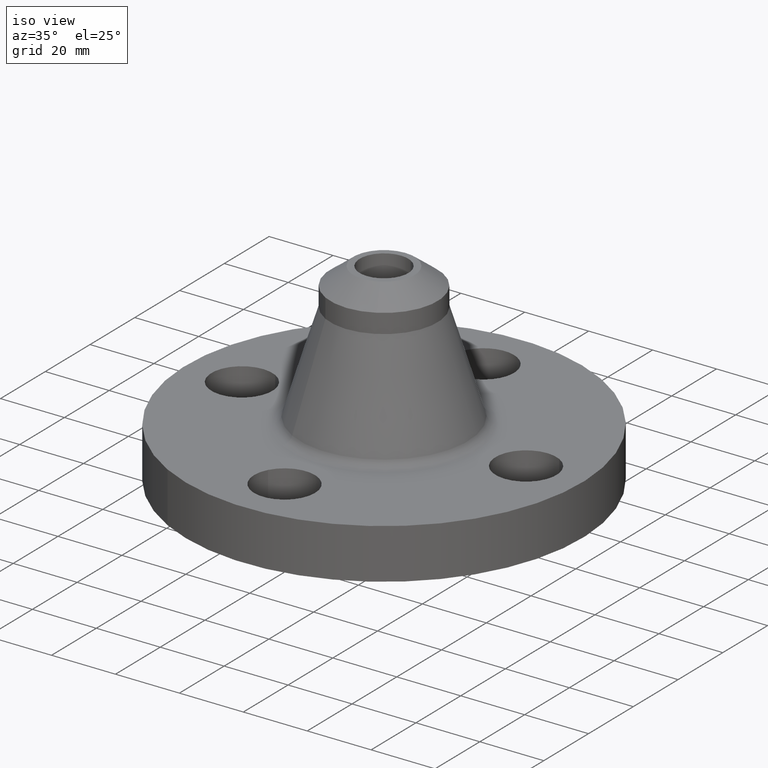
[diagram: clean part render]
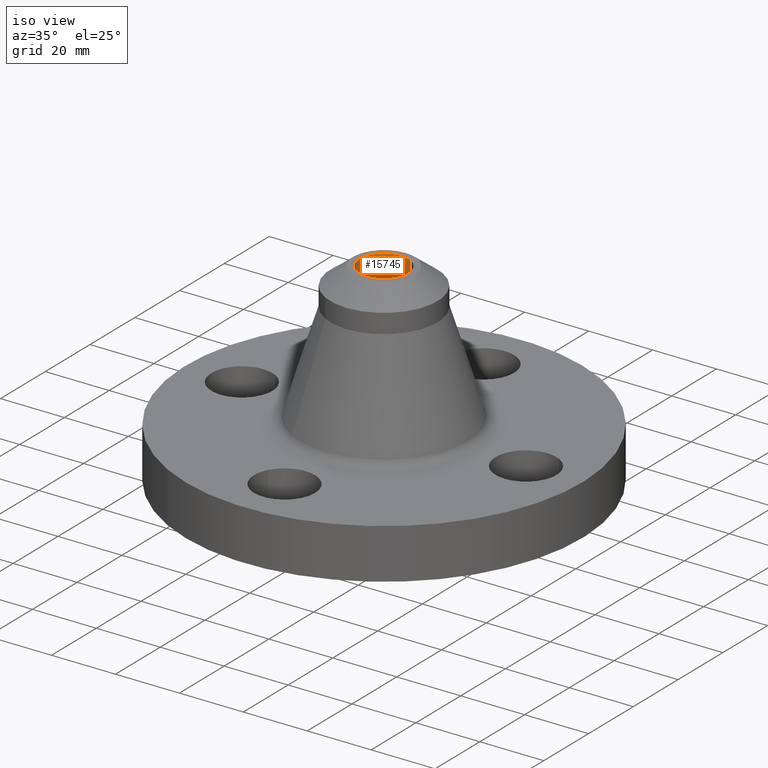
[diagram: same view with one face highlighted and labeled with its STEP entity id]
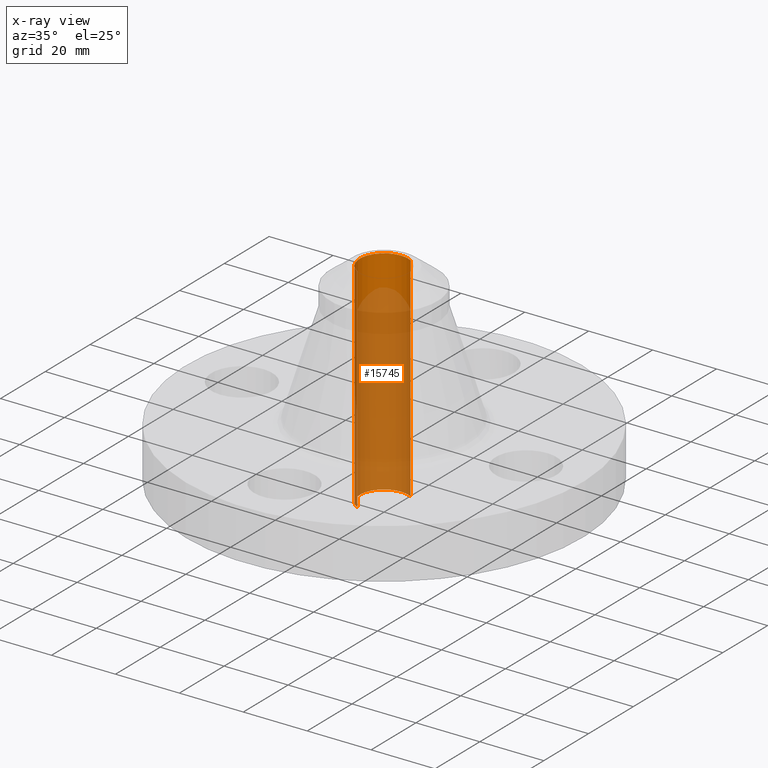
[diagram: x-ray of the same camera — body ghosted, the highlighted face saturated]
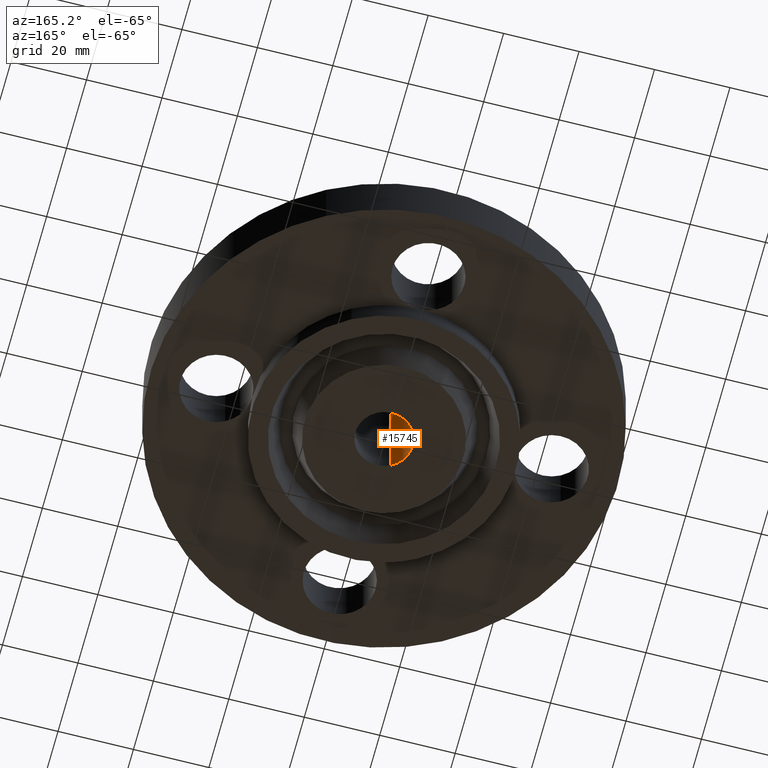
[diagram: same view with one face highlighted and labeled with its STEP entity id]
A machine part, iso view. The second image highlights one B-rep face of the part: STEP entity #15745.
The next image is the same camera in x-ray: the body ghosted, the highlighted face saturated — about 81% of this face is hidden behind the body in this view.
A second angle (auxiliary view) of the same face is appended — the face is thin or edge-on in the first view.
In plain terms, the highlighted cylindrical surface (edge-blend (fillet) strip) has radius 7.6073 mm, axis along (-0, 0, -1).
Its self-contained STEP definition (entity closure, byte-faithful):
#4869=AXIS2_PLACEMENT_3D('Circle Axis2P3D',#4867,#4868,$) ;
#15706=AXIS2_PLACEMENT_3D('Cylinder Axis2P3D',#15703,#15704,#15705) ;
#4867=CARTESIAN_POINT('Axis2P3D Location',(0.,-1.40130776624E-011,2.38000000001)) ;
#4871=CARTESIAN_POINT('Vertex',(-0.143587948813,-0.262835977287,2.38000000002)) ;
#4873=CARTESIAN_POINT('Vertex',(0.143587948813,0.262835977287,2.38000000002)) ;
#15703=CARTESIAN_POINT('Axis2P3D Location',(0.,0.,1.065)) ;
#15708=CARTESIAN_POINT('Line Origine',(-0.143587948813,-0.262835977287,1.065)) ;
#15712=CARTESIAN_POINT('Vertex',(-0.143587948813,-0.262835977287,-0.250000000021)) ;
#15716=CARTESIAN_POINT('Control Point',(-0.143587948813,-0.262835977287,-0.250000000021)) ;
#15717=CARTESIAN_POINT('Control Point',(-0.18487412758,-0.24028123503,-0.25000000002)) ;
#15718=CARTESIAN_POINT('Control Point',(-0.221731693061,-0.209619970529,-0.250000000019)) ;
#15719=CARTESIAN_POINT('Control Point',(-0.252031183289,-0.172005111558,-0.250000000018)) ;
#15720=CARTESIAN_POINT('Control Point',(-0.296248793518,-0.0869217639421,-0.250000000016)) ;
#15721=CARTESIAN_POINT('Control Point',(-0.305011686401,0.00856428113419,-0.250000000014)) ;
#15722=CARTESIAN_POINT('Control Point',(-0.299838939556,0.0565869779923,-0.250000000013)) ;
#15723=CARTESIAN_POINT('Control Point',(-0.270942499531,0.148016562099,-0.250000000011)) ;
#15724=CARTESIAN_POINT('Control Point',(-0.209619970529,0.221731693061,-0.250000000009)) ;
#15725=CARTESIAN_POINT('Control Point',(-0.172005111559,0.252031183289,-0.250000000008)) ;
#15726=CARTESIAN_POINT('Control Point',(-0.0869217639423,0.296248793518,-0.250000000006)) ;
#15727=CARTESIAN_POINT('Control Point',(0.00856428113399,0.305011686401,-0.250000000004)) ;
#15728=CARTESIAN_POINT('Control Point',(0.0565869779921,0.299838939556,-0.250000000003)) ;
#15729=CARTESIAN_POINT('Control Point',(0.102301770045,0.285390719544,-0.250000000002)) ;
#15730=CARTESIAN_POINT('Control Point',(0.143587948813,0.262835977287,-0.250000000001)) ;
#15731=CARTESIAN_POINT('Vertex',(0.143587948813,0.262835977287,-0.250000000021)) ;
#15734=CARTESIAN_POINT('Line Origine',(0.143587948813,0.262835977287,1.065)) ;
#4868=DIRECTION('Axis2P3D Direction',(0.,0.,-0.0393700787402)) ;
#15704=DIRECTION('Axis2P3D Direction',(-0.,0.,-0.0393700787402)) ;
#15705=DIRECTION('Axis2P3D XDirection',(-0.0188750212049,-0.0345504945626,0.)) ;
#15709=DIRECTION('Vector Direction',(0.,0.,-0.0393700787402)) ;
#15735=DIRECTION('Vector Direction',(0.,0.,-0.0393700787402)) ;
#15710=VECTOR('Line Direction',#15709,0.0393700787402) ;
#15736=VECTOR('Line Direction',#15735,0.0393700787402) ;
#15740=ORIENTED_EDGE('',*,*,#4875,.F.) ;
#15741=ORIENTED_EDGE('',*,*,#15714,.T.) ;
#15742=ORIENTED_EDGE('',*,*,#15733,.T.) ;
#15743=ORIENTED_EDGE('',*,*,#15738,.F.) ;
#15745=ADVANCED_FACE('PartBody',(#15744),#15707,.F.) ;
#15715=B_SPLINE_CURVE_WITH_KNOTS('',5,(#15716,#15717,#15718,#15719,#15720,#15721,#15722,#15723,#15724,#15725,#15726,#15727,#15728,#15729,#15730),.UNSPECIFIED.,.F.,.U.,(6,3,3,3,6),(-11.9495188969,-5.97475944843,0.,5.97475944843,11.9495188969),.UNSPECIFIED.) ;
#4870=CIRCLE('generated circle',#4869,0.299499999992) ;
#15707=CYLINDRICAL_SURFACE('generated cylinder',#15706,0.299500000001) ;
#4875=EDGE_CURVE('',#4872,#4874,#4870,.T.) ;
#15714=EDGE_CURVE('',#4872,#15713,#15711,.T.) ;
#15733=EDGE_CURVE('',#15713,#15732,#15715,.T.) ;
#15738=EDGE_CURVE('',#4874,#15732,#15737,.T.) ;
#15739=EDGE_LOOP('',(#15740,#15741,#15742,#15743)) ;
#15744=FACE_OUTER_BOUND('',#15739,.T.) ;
#15711=LINE('Line',#15708,#15710) ;
#15737=LINE('Line',#15734,#15736) ;
#4872=VERTEX_POINT('',#4871) ;
#4874=VERTEX_POINT('',#4873) ;
#15713=VERTEX_POINT('',#15712) ;
#15732=VERTEX_POINT('',#15731) ;